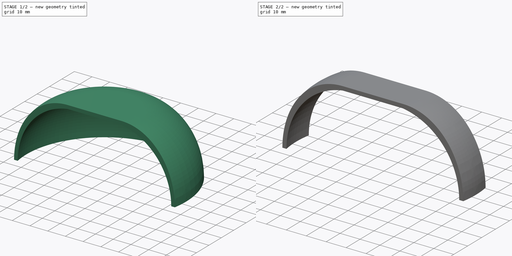
[diagram: build sequence overview — one tinted view per stage of 2, left to right]
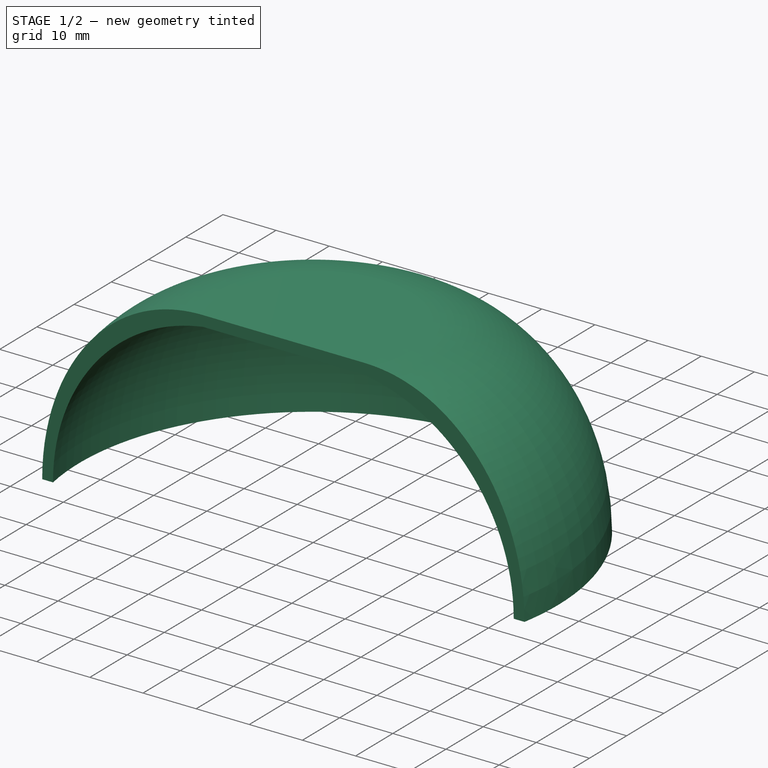
[diagram: stage 1 of 2 — iso view after this stage's code; geometry added in this stage tinted green]
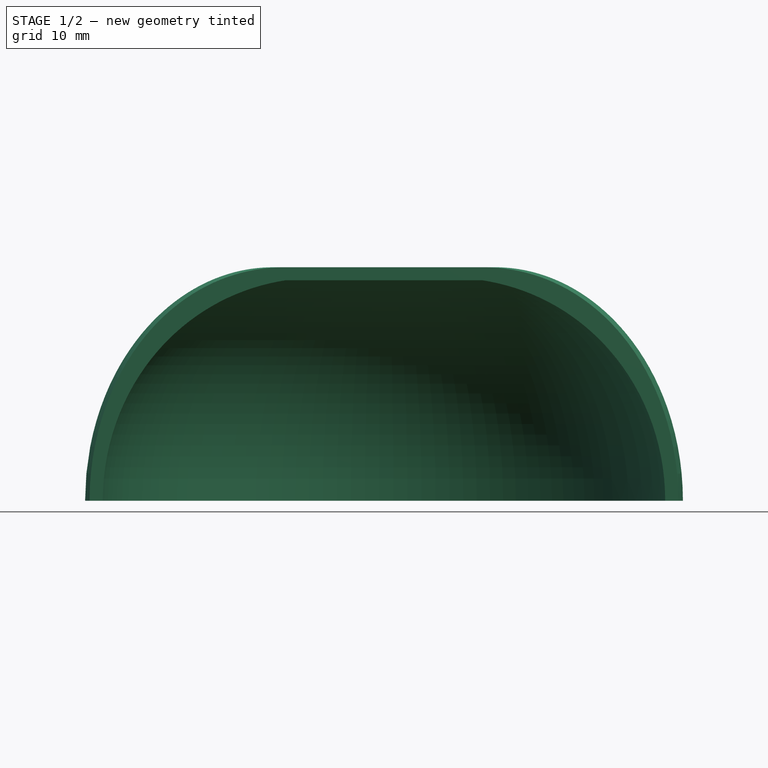
[diagram: stage 1 of 2 — front view after this stage's code; geometry added in this stage tinted green]
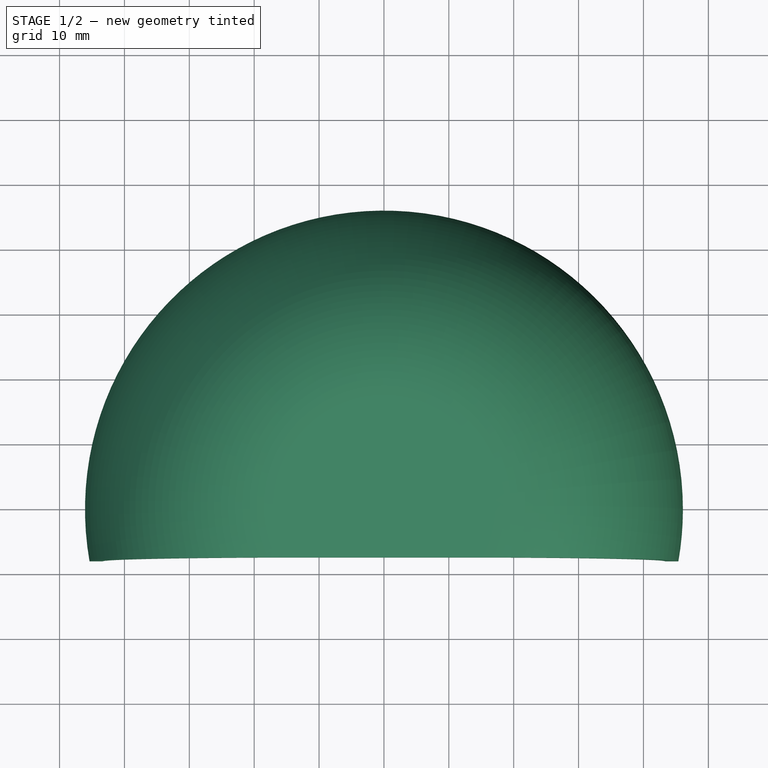
[diagram: stage 1 of 2 — top view after this stage's code; geometry added in this stage tinted green]
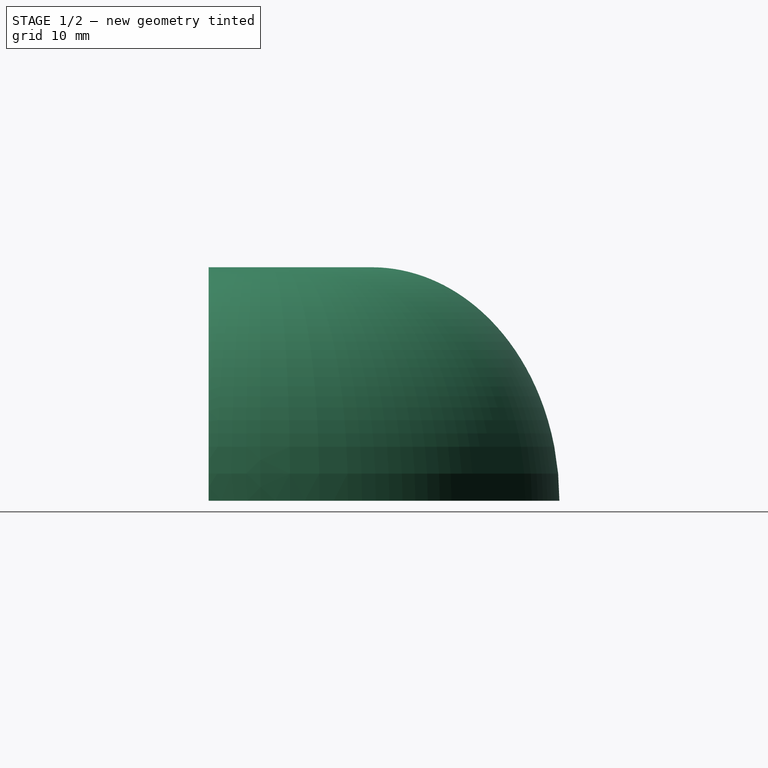
[diagram: stage 1 of 2 — right view after this stage's code; geometry added in this stage tinted green]
FCSTD DOCUMENT  (FreeCAD 0.19R24291 (Git))
Label: Unnamed4
License: All rights reserved
LicenseURL: http://en.wikipedia.org/wiki/All_rights_reserved
objects: Sketcher::SketchObject×1, PartDesign::Revolution×1, PartDesign::SubtractiveBox×1, PartDesign::Mirrored×1, PartDesign::Body×1
note: 7 computed .brp shape members not serialized (recipe doc carries the construction recipe); baked Part::Feature solids carry a one-line shape summary decoded from their .brp

FEATURE [Sketcher::SketchObject] Sketch
  FullyConstrained = true
  MapMode = 5
  Placement = pos=(0,0,0) rot=(1,0,0;1.5708rad)
  Support = -> [XZ_Plane]
  sketch-geometry (17):
    g0: LineSegment StartX=0 StartY=34 StartZ=0 EndX=17.1 EndY=34 EndZ=0
    g1: LineSegment StartX=0 StartY=36 StartZ=0 EndX=17.1 EndY=36 EndZ=0
    g2: LineSegment StartX=0 StartY=34 StartZ=0 EndX=0 EndY=36 EndZ=0
    g3: LineSegment StartX=44.08 StartY=-1.31e-14 StartZ=0 EndX=46.08 EndY=-1.31e-14 EndZ=0
    g4: ArcOfEllipse CenterX=11.858 CenterY=-7.5e-15 CenterZ=0 NormalX=0 NormalY=0 NormalZ=1 MajorRadius=34.4591 MinorRadius=32.222 AngleXU=-1.5708 StartAngle=1.5708 EndAngle=2.97818
    g5: LineSegment StartX=11.858 StartY=-34.4591 StartZ=0 EndX=11.858 EndY=34.4591 EndZ=0
    g6: LineSegment StartX=44.08 StartY=-7.5e-15 StartZ=0 EndX=-20.3639 EndY=-7.5e-15 EndZ=0
    g7: GeomPoint X=11.858 Y=-12.2136 Z=0
    g8: GeomPoint X=11.858 Y=12.2136 Z=0
    g9: GeomPoint X=44.08 Y=0 Z=0
    g10: ArcOfEllipse CenterX=17.1 CenterY=-6.5e-15 CenterZ=0 NormalX=0 NormalY=0 NormalZ=1 MajorRadius=36 MinorRadius=28.98 AngleXU=1.5708 StartAngle=4.71239 EndAngle=6.28319
    g11: LineSegment StartX=17.1 StartY=36 StartZ=0 EndX=17.1 EndY=-36 EndZ=0
    g12: LineSegment StartX=-11.88 StartY=-6.5e-15 StartZ=0 EndX=46.08 EndY=-6.5e-15 EndZ=0
    g13: GeomPoint X=17.1 Y=21.3579 Z=0
    g14: GeomPoint X=17.1 Y=-21.3579 Z=0
    g15: GeomPoint X=46.08 Y=0 Z=0
    g16: LineSegment StartX=209.924 StartY=0 StartZ=0 EndX=0 EndY=37.0152 EndZ=0
  constraints (34):
    c: PointOnObject(g0,g-2)
    c: Horizontal(g0)
    c: PointOnObject(g1,g-2)
    c: Horizontal(g1)
    c: Coincident(g2,g0)
    c: Coincident(g2,g1)
    c: PointOnObject(g3,g-1)
    c: Horizontal(g3)
    c: Distance(g2) = 2
    c: Distance(g0) = 17.1
    c: Distance(g-1,g0) = 34
    c: DistanceX(g-1,g3) = 44.08
    c: InternalAlignment(g5-g8 -> g4) x4
    c: Coincident(g4,g0)
    c: Coincident(g4,g3)
    c: PointOnObject(g9,g4)
    c: PointOnObject(g9,g3)
    c: Perpendicular(g4,g3,g9) = 4.71239
    c: Vertical(g5)
    c: InternalAlignment(g11-g14 -> g10) x4
    c: Coincident(g10,g1)
    c: Coincident(g10,g3)
    c: Tangent(g1,g10)
    c: PointOnObject(g15,g10)
    c: PointOnObject(g15,g3)
    c: Perpendicular(g10,g3,g15) = 4.71239
    c: Distance(g3) = 2
    c: Vertical(g11)
    c: Vertical(g1,g0)
    c: Tangent(g16,g4)
    c: PointOnObject(g0,g16)
    c: Angle(g0,g16) = 2.96706
    c: PointOnObject(g16,g-2)
    c: PointOnObject(g16,g-1)
FEATURE [PartDesign::Revolution] Revolution
  Angle = 360
  Axis = (0,2e-16,1)
  Base = (0,0,0)
  Placement = pos=(0,0,0) rot=(1,0,0;1.5708rad)
  Profile = -> Sketch
  ReferenceAxis = -> Sketch [V_Axis]
  Refine = true
  Reversed = true
FEATURE [PartDesign::SubtractiveBox] Box
  AttacherType = Attacher::AttachEngine3D
  AttachmentOffset = pos=(-86,0,8) rot=(0,0,1;0rad)
  BaseFeature = -> Revolution
  Height = 300
  Length = 300
  MapMode = 5
  Placement = pos=(-86,-8,1.8e-15) rot=(1,0,0;1.5708rad)
  Refine = true
  Support = -> [XZ_Plane]
  Width = 300
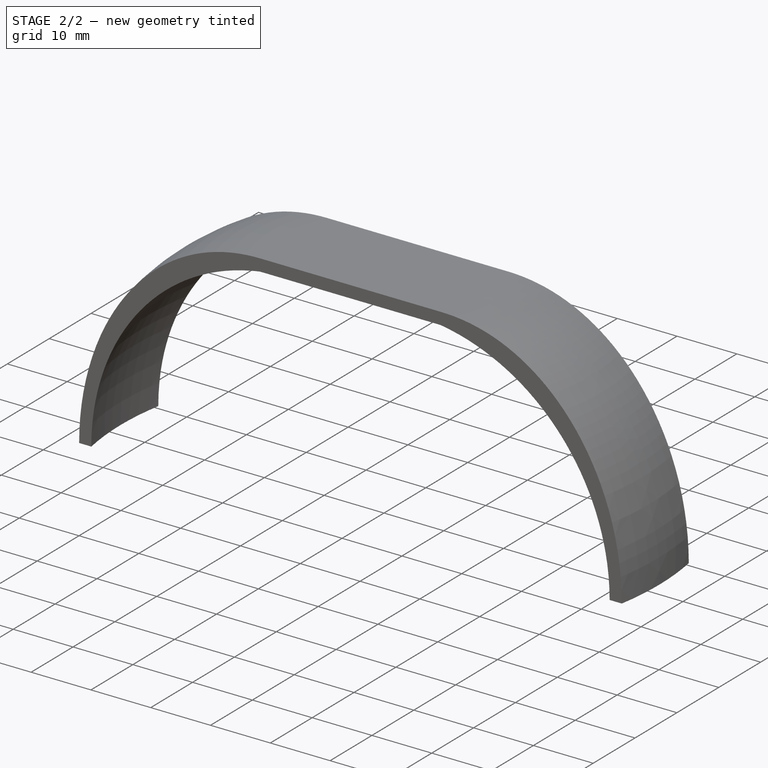
[diagram: stage 2 of 2 — iso view after this stage's code; geometry added in this stage tinted green]
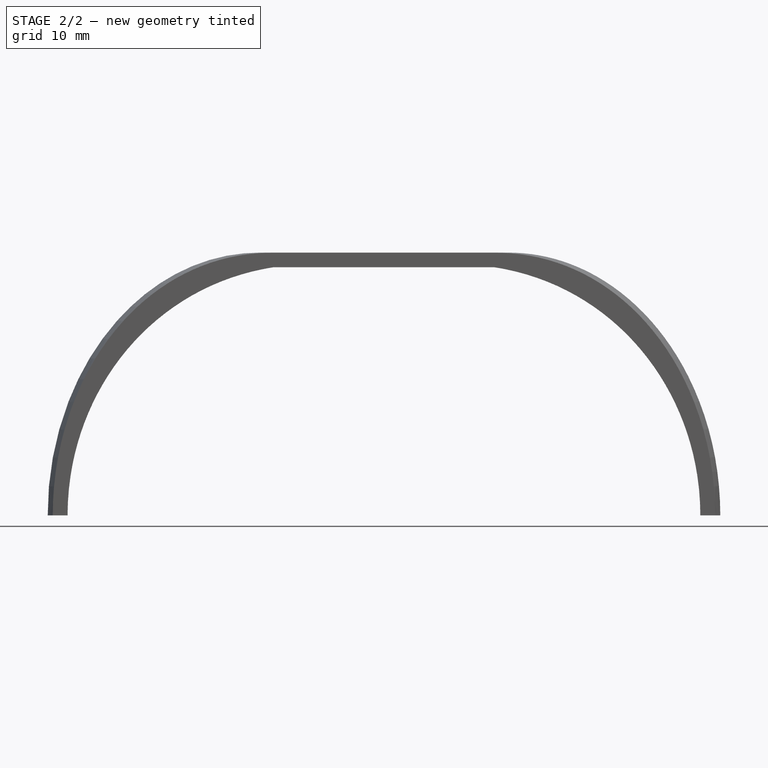
[diagram: stage 2 of 2 — front view after this stage's code; geometry added in this stage tinted green]
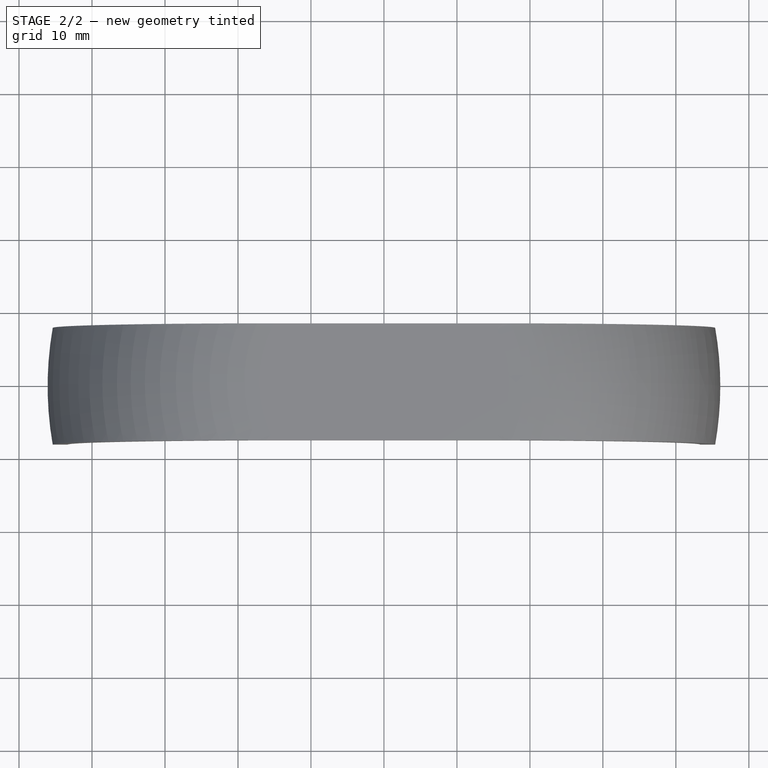
[diagram: stage 2 of 2 — top view after this stage's code; geometry added in this stage tinted green]
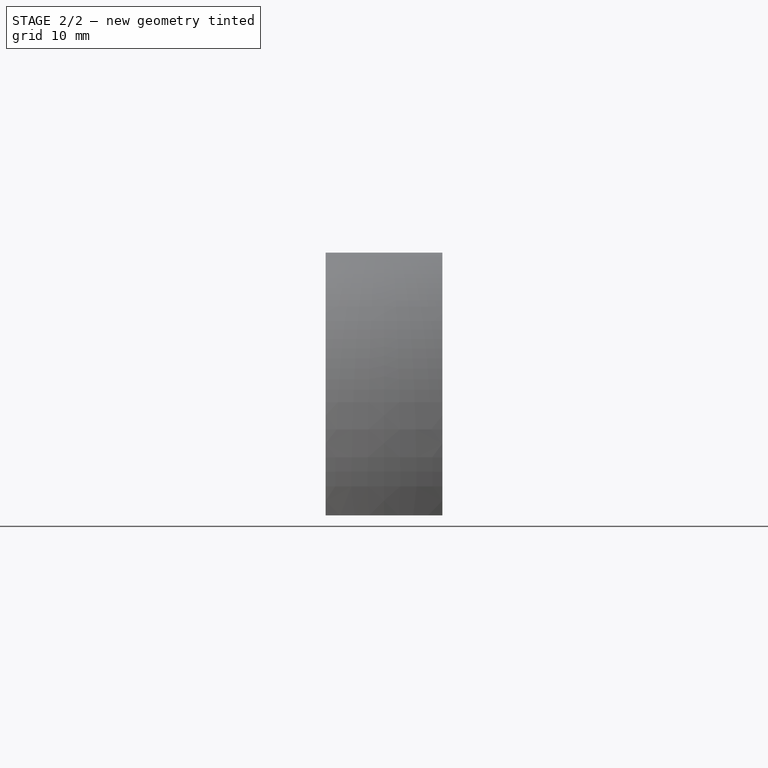
[diagram: stage 2 of 2 — right view after this stage's code; geometry added in this stage tinted green]
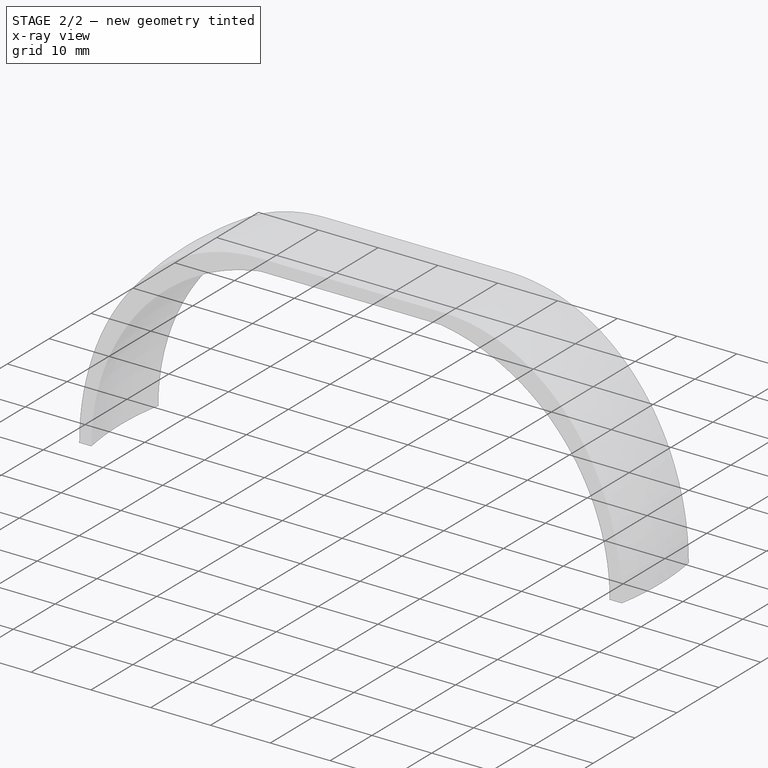
[diagram: stage 2 of 2 — x-ray composite at the iso view; earlier geometry ghosted, this stage's added geometry solid]
FEATURE [PartDesign::Mirrored] Mirrored
  BaseFeature = -> Box
  MirrorPlane = -> XZ_Plane
  Originals = -> [Box]
  Placement = pos=(-86,-8,1.8e-15) rot=(1,0,0;1.5708rad)
  Refine = true
FEATURE [PartDesign::Body] Body
  Group = -> [Sketch,Revolution,Box,Mirrored]
  Origin = -> Origin
  Tip = -> Mirrored
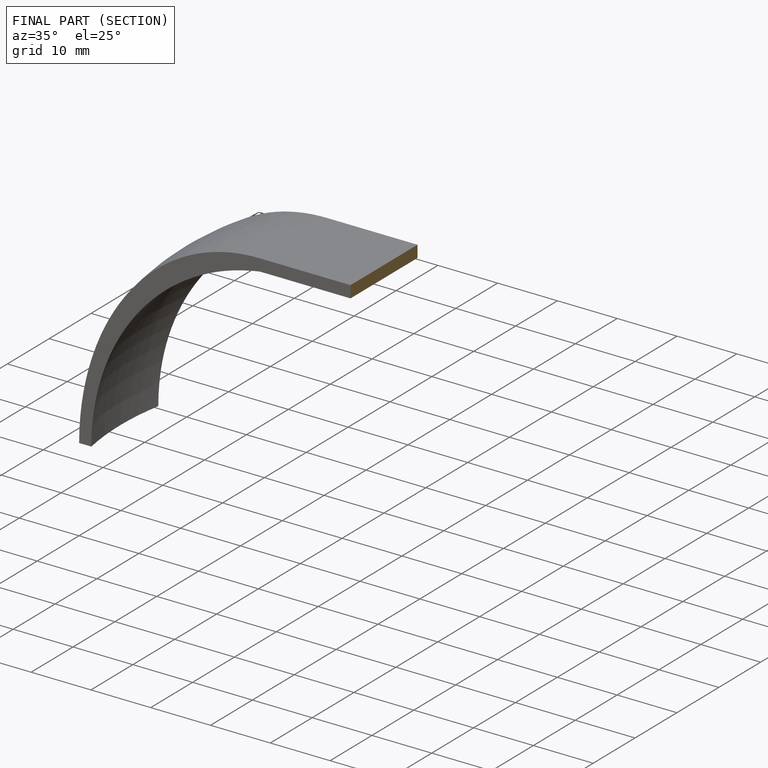
[diagram: finished part — half-section view (interior)]
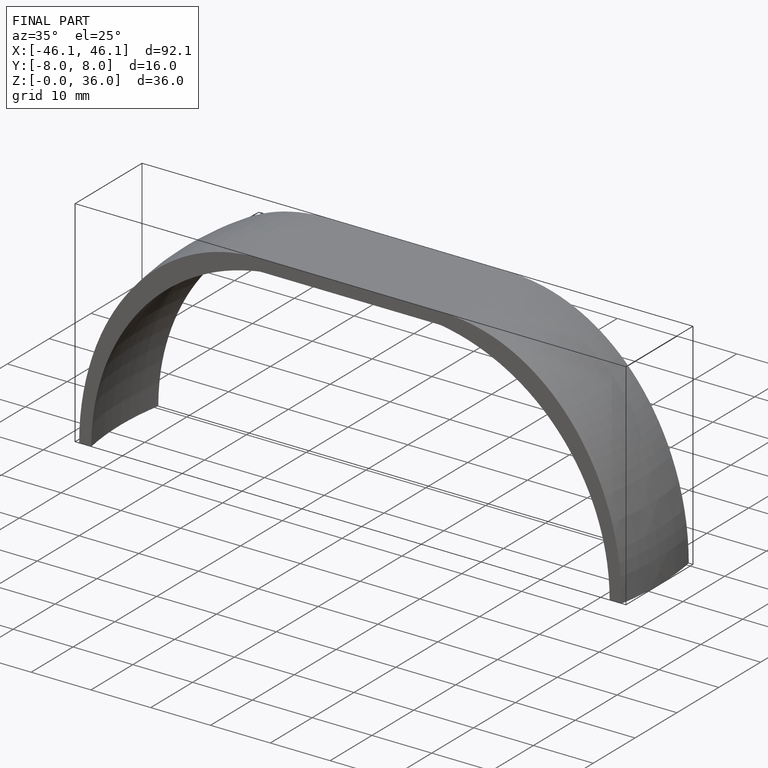
[diagram: finished part — iso view with bounding-box wireframe]
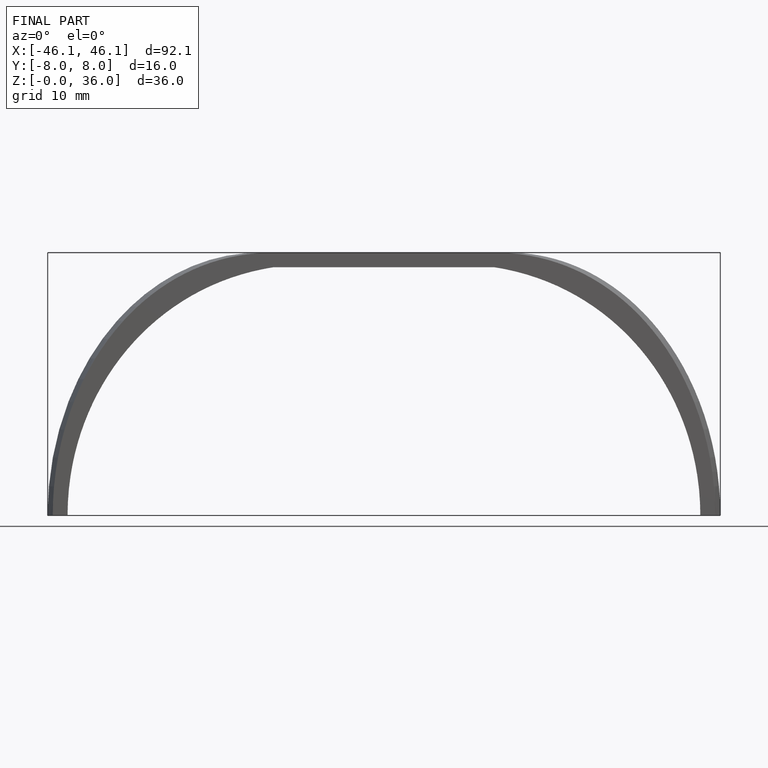
[diagram: finished part — front view with bounding-box wireframe]
